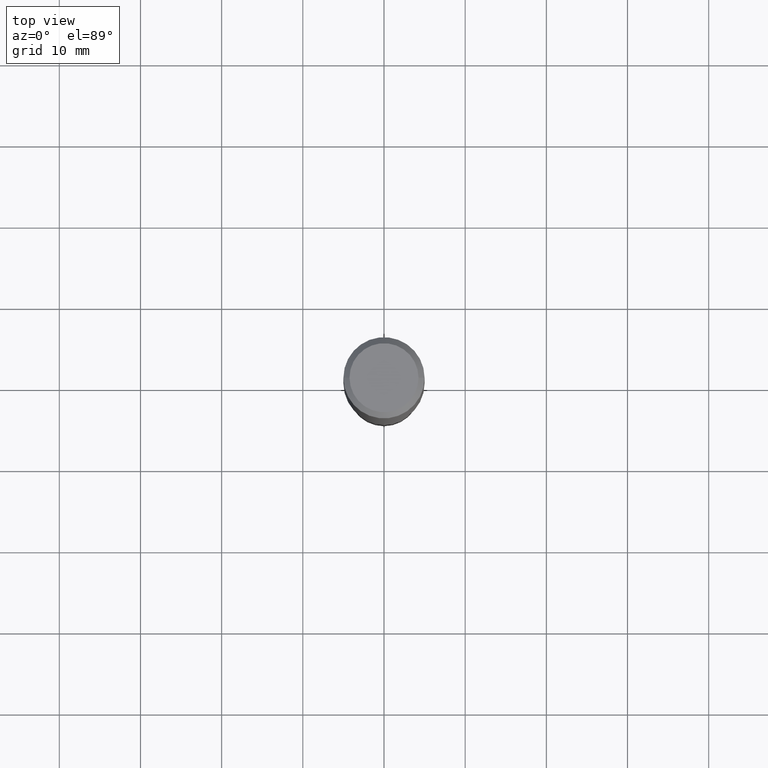
[diagram: clean part render]
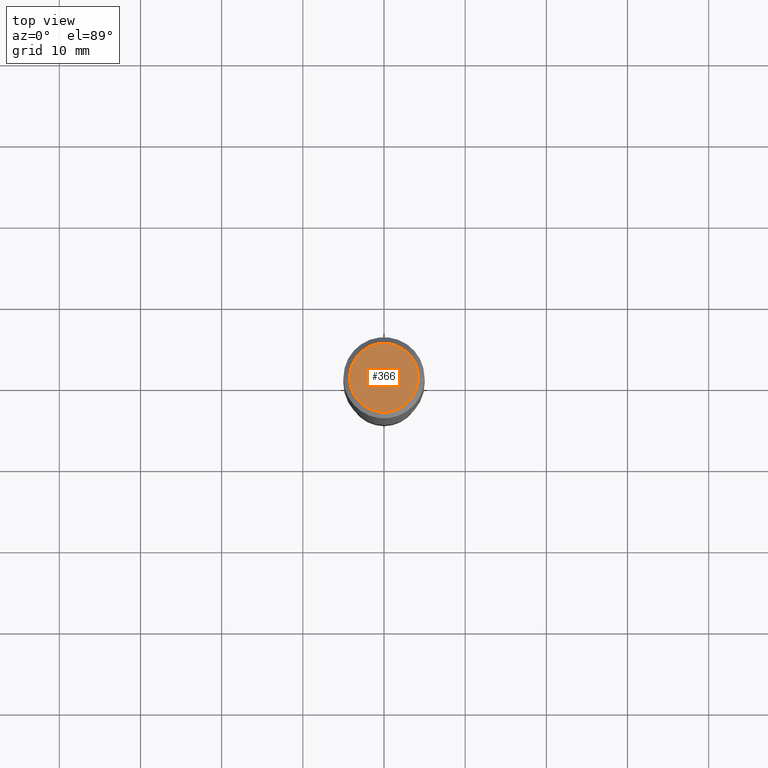
[diagram: same view with one face highlighted and labeled with its STEP entity id]
A machine part, top view. The second image highlights one B-rep face of the part: STEP entity #366.
In plain terms, the highlighted planar face has unit normal (0, -0, -1).
Its self-contained STEP definition (entity closure, byte-faithful):
#9 = AXIS2_PLACEMENT_3D ( 'NONE', #282, #87, #364 ) ;
#31 = FACE_OUTER_BOUND ( 'NONE', #434, .T. ) ;
#36 = DIRECTION ( 'NONE',  ( 1.000000000000000000, -6.982962677686267499E-15, 4.876294436782262290E-29 ) ) ;
#64 = CARTESIAN_POINT ( 'NONE',  ( 0.1673224999999999851, -1.300749711163072594E-15, 4.096137381456741925E-18 ) ) ;
#73 = CARTESIAN_POINT ( 'NONE',  ( -5.008488096090108951E-47, 7.150793614331948590E-33, 2.048068690724054183E-18 ) ) ;
#87 = DIRECTION ( 'NONE',  ( -2.445468806185136597E-29, 3.491481338843145583E-15, 1.000000000000000000 ) ) ;
#103 = CARTESIAN_POINT ( 'NONE',  ( -0.1673224999999999851, 1.219954130253505460E-15, 4.096137381439757534E-18 ) ) ;
#107 = EDGE_CURVE ( 'NONE', #238, #363, #418, .T. ) ;
#109 = DIRECTION ( 'NONE',  ( -2.445468806185136597E-29, 3.491481338843145583E-15, 1.000000000000000000 ) ) ;
#151 = CIRCLE ( 'NONE', #305, 0.1673224999999999851 ) ;
#159 = AXIS2_PLACEMENT_3D ( 'NONE', #73, #374, #342 ) ;
#199 = ORIENTED_EDGE ( 'NONE', *, *, #107, .T. ) ;
#220 = CARTESIAN_POINT ( 'NONE',  ( -1.001697619218021790E-46, 1.430158722866389718E-32, 4.096137381448108366E-18 ) ) ;
#238 = VERTEX_POINT ( 'NONE', #64 ) ;
#282 = CARTESIAN_POINT ( 'NONE',  ( -1.001697619218021790E-46, 1.430158722866389718E-32, 4.096137381448108366E-18 ) ) ;
#305 = AXIS2_PLACEMENT_3D ( 'NONE', #220, #109, #36 ) ;
#342 = DIRECTION ( 'NONE',  ( -1.000000000000000000, 6.982962677686265922E-15, -4.876176775795935793E-29 ) ) ;
#363 = VERTEX_POINT ( 'NONE', #103 ) ;
#364 = DIRECTION ( 'NONE',  ( 1.000000000000000000, -6.982962677686267499E-15, 4.876294436782262290E-29 ) ) ;
#366 = ADVANCED_FACE ( 'NONE', ( #31 ), #491, .F. ) ;
#374 = DIRECTION ( 'NONE',  ( 2.438088387897960049E-29, -3.491481338843145188E-15, -1.000000000000000000 ) ) ;
#418 = CIRCLE ( 'NONE', #9, 0.1673224999999999851 ) ;
#431 = ORIENTED_EDGE ( 'NONE', *, *, #489, .T. ) ;
#434 = EDGE_LOOP ( 'NONE', ( #431, #199 ) ) ;
#489 = EDGE_CURVE ( 'NONE', #363, #238, #151, .T. ) ;
#491 = PLANE ( 'NONE',  #159 ) ;